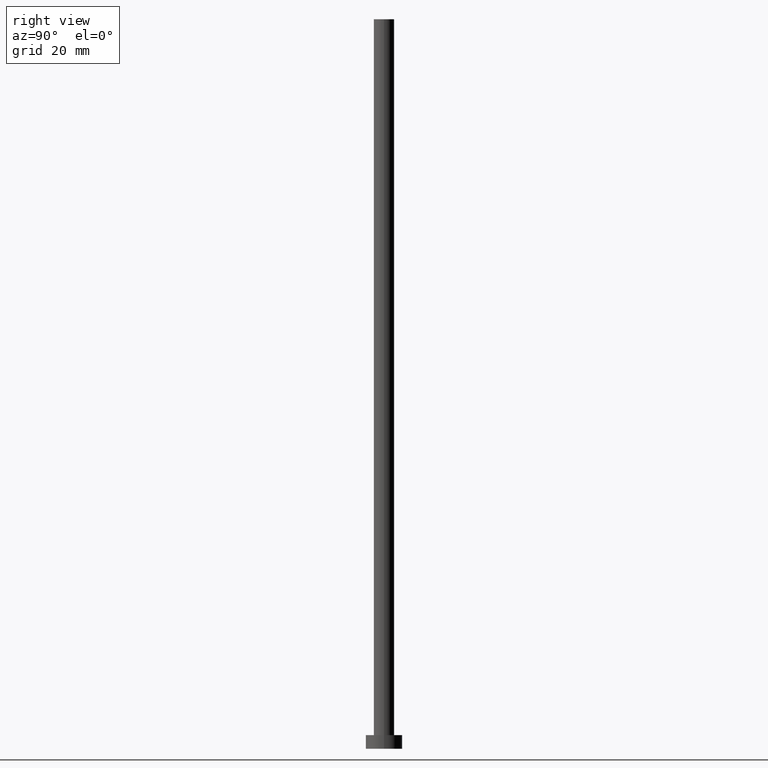
[diagram: clean part render]
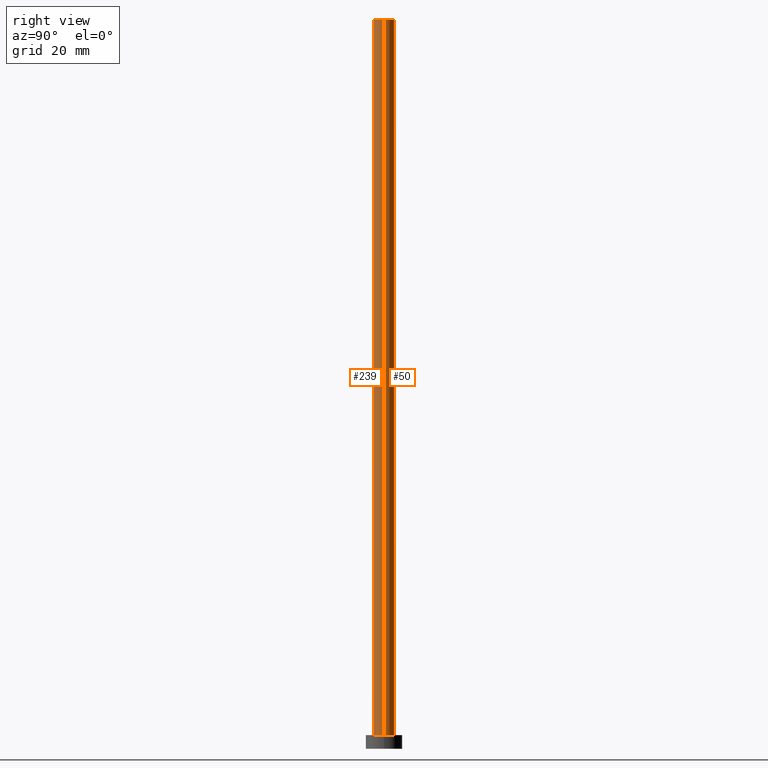
[diagram: same view with one multi-face feature highlighted, each face labeled with its STEP entity id]
A machine part, right view. The highlighted faces form ONE feature: a constant-radius fillet chain: 2 tangent blend faces with common blend radius 2.25 mm. The faces share edges in the B-rep.
Their STEP definitions:
[1] entity #239 (Cylinder):
#1 = VECTOR ( 'NONE', #252, 1000.000000000000000 ) ;
#3 = VERTEX_POINT ( 'NONE', #47 ) ;
#12 = AXIS2_PLACEMENT_3D ( 'NONE', #89, #160, #66 ) ;
#15 = LINE ( 'NONE', #146, #1 ) ;
#23 = CARTESIAN_POINT ( 'NONE',  ( 2.250000000000000000, 2.755455298081544285E-16, 160.0000000000000000 ) ) ;
#42 = DIRECTION ( 'NONE',  ( 0.000000000000000000, 0.000000000000000000, 1.000000000000000000 ) ) ;
#47 = CARTESIAN_POINT ( 'NONE',  ( -2.250000000000000000, 0.000000000000000000, 160.0000000000000000 ) ) ;
#48 = DIRECTION ( 'NONE',  ( -0.000000000000000000, -0.000000000000000000, -1.000000000000000000 ) ) ;
#52 = EDGE_CURVE ( 'NONE', #3, #100, #15, .T. ) ;
#60 = ORIENTED_EDGE ( 'NONE', *, *, #214, .F. ) ;
#66 = DIRECTION ( 'NONE',  ( 1.000000000000000000, 0.000000000000000000, 0.000000000000000000 ) ) ;
#78 = CARTESIAN_POINT ( 'NONE',  ( 0.000000000000000000, 0.000000000000000000, 160.0000000000000000 ) ) ;
#82 = VECTOR ( 'NONE', #110, 1000.000000000000000 ) ;
#86 = ORIENTED_EDGE ( 'NONE', *, *, #114, .T. ) ;
#89 = CARTESIAN_POINT ( 'NONE',  ( 0.000000000000000000, 0.000000000000000000, 3.000000000000000000 ) ) ;
#98 = ORIENTED_EDGE ( 'NONE', *, *, #52, .T. ) ;
#100 = VERTEX_POINT ( 'NONE', #168 ) ;
#103 = CARTESIAN_POINT ( 'NONE',  ( 2.250000000000000000, 2.755455298081544285E-16, 3.000000000000000000 ) ) ;
#110 = DIRECTION ( 'NONE',  ( -0.000000000000000000, -0.000000000000000000, -1.000000000000000000 ) ) ;
#114 = EDGE_CURVE ( 'NONE', #100, #243, #181, .T. ) ;
#130 = CIRCLE ( 'NONE', #234, 2.250000000000000000 ) ;
#132 = ORIENTED_EDGE ( 'NONE', *, *, #215, .F. ) ;
#133 = EDGE_LOOP ( 'NONE', ( #132, #60, #98, #86 ) ) ;
#135 = DIRECTION ( 'NONE',  ( -1.000000000000000000, 0.000000000000000000, 0.000000000000000000 ) ) ;
#137 = FACE_OUTER_BOUND ( 'NONE', #133, .T. ) ;
#146 = CARTESIAN_POINT ( 'NONE',  ( -2.250000000000000000, 0.000000000000000000, 160.0000000000000000 ) ) ;
#150 = AXIS2_PLACEMENT_3D ( 'NONE', #200, #48, #135 ) ;
#160 = DIRECTION ( 'NONE',  ( 0.000000000000000000, 0.000000000000000000, 1.000000000000000000 ) ) ;
#168 = CARTESIAN_POINT ( 'NONE',  ( -2.250000000000000000, 0.000000000000000000, 3.000000000000000000 ) ) ;
#181 = CIRCLE ( 'NONE', #12, 2.250000000000000000 ) ;
#198 = LINE ( 'NONE', #235, #82 ) ;
#200 = CARTESIAN_POINT ( 'NONE',  ( 0.000000000000000000, 0.000000000000000000, 160.0000000000000000 ) ) ;
#214 = EDGE_CURVE ( 'NONE', #3, #236, #130, .T. ) ;
#215 = EDGE_CURVE ( 'NONE', #236, #243, #198, .T. ) ;
#216 = DIRECTION ( 'NONE',  ( 1.000000000000000000, 0.000000000000000000, 0.000000000000000000 ) ) ;
#234 = AXIS2_PLACEMENT_3D ( 'NONE', #78, #42, #216 ) ;
#235 = CARTESIAN_POINT ( 'NONE',  ( 2.250000000000000000, 2.755455298081544285E-16, 160.0000000000000000 ) ) ;
#236 = VERTEX_POINT ( 'NONE', #23 ) ;
#239 = ADVANCED_FACE ( 'NONE', ( #137 ), #245, .T. ) ;
#243 = VERTEX_POINT ( 'NONE', #103 ) ;
#245 = CYLINDRICAL_SURFACE ( 'NONE', #150, 2.250000000000000000 ) ;
#252 = DIRECTION ( 'NONE',  ( -0.000000000000000000, -0.000000000000000000, -1.000000000000000000 ) ) ;
[2] entity #50 (Cylinder):
#1 = VECTOR ( 'NONE', #252, 1000.000000000000000 ) ;
#2 = CARTESIAN_POINT ( 'NONE',  ( 0.000000000000000000, 0.000000000000000000, 160.0000000000000000 ) ) ;
#3 = VERTEX_POINT ( 'NONE', #47 ) ;
#4 = EDGE_CURVE ( 'NONE', #236, #3, #185, .T. ) ;
#5 = AXIS2_PLACEMENT_3D ( 'NONE', #2, #237, #72 ) ;
#15 = LINE ( 'NONE', #146, #1 ) ;
#23 = CARTESIAN_POINT ( 'NONE',  ( 2.250000000000000000, 2.755455298081544285E-16, 160.0000000000000000 ) ) ;
#47 = CARTESIAN_POINT ( 'NONE',  ( -2.250000000000000000, 0.000000000000000000, 160.0000000000000000 ) ) ;
#50 = ADVANCED_FACE ( 'NONE', ( #102 ), #177, .T. ) ;
#52 = EDGE_CURVE ( 'NONE', #3, #100, #15, .T. ) ;
#53 = ORIENTED_EDGE ( 'NONE', *, *, #52, .F. ) ;
#61 = ORIENTED_EDGE ( 'NONE', *, *, #215, .T. ) ;
#65 = EDGE_CURVE ( 'NONE', #243, #100, #179, .T. ) ;
#72 = DIRECTION ( 'NONE',  ( -1.000000000000000000, 0.000000000000000000, 0.000000000000000000 ) ) ;
#74 = ORIENTED_EDGE ( 'NONE', *, *, #4, .F. ) ;
#82 = VECTOR ( 'NONE', #110, 1000.000000000000000 ) ;
#100 = VERTEX_POINT ( 'NONE', #168 ) ;
#102 = FACE_OUTER_BOUND ( 'NONE', #248, .T. ) ;
#103 = CARTESIAN_POINT ( 'NONE',  ( 2.250000000000000000, 2.755455298081544285E-16, 3.000000000000000000 ) ) ;
#110 = DIRECTION ( 'NONE',  ( -0.000000000000000000, -0.000000000000000000, -1.000000000000000000 ) ) ;
#122 = DIRECTION ( 'NONE',  ( 0.000000000000000000, 0.000000000000000000, 1.000000000000000000 ) ) ;
#129 = CARTESIAN_POINT ( 'NONE',  ( 0.000000000000000000, 0.000000000000000000, 160.0000000000000000 ) ) ;
#134 = DIRECTION ( 'NONE',  ( 1.000000000000000000, 0.000000000000000000, 0.000000000000000000 ) ) ;
#143 = AXIS2_PLACEMENT_3D ( 'NONE', #129, #205, #195 ) ;
#146 = CARTESIAN_POINT ( 'NONE',  ( -2.250000000000000000, 0.000000000000000000, 160.0000000000000000 ) ) ;
#168 = CARTESIAN_POINT ( 'NONE',  ( -2.250000000000000000, 0.000000000000000000, 3.000000000000000000 ) ) ;
#173 = AXIS2_PLACEMENT_3D ( 'NONE', #204, #122, #134 ) ;
#177 = CYLINDRICAL_SURFACE ( 'NONE', #5, 2.250000000000000000 ) ;
#179 = CIRCLE ( 'NONE', #173, 2.250000000000000000 ) ;
#185 = CIRCLE ( 'NONE', #143, 2.250000000000000000 ) ;
#195 = DIRECTION ( 'NONE',  ( 1.000000000000000000, 0.000000000000000000, 0.000000000000000000 ) ) ;
#198 = LINE ( 'NONE', #235, #82 ) ;
#204 = CARTESIAN_POINT ( 'NONE',  ( 0.000000000000000000, 0.000000000000000000, 3.000000000000000000 ) ) ;
#205 = DIRECTION ( 'NONE',  ( 0.000000000000000000, 0.000000000000000000, 1.000000000000000000 ) ) ;
#215 = EDGE_CURVE ( 'NONE', #236, #243, #198, .T. ) ;
#235 = CARTESIAN_POINT ( 'NONE',  ( 2.250000000000000000, 2.755455298081544285E-16, 160.0000000000000000 ) ) ;
#236 = VERTEX_POINT ( 'NONE', #23 ) ;
#237 = DIRECTION ( 'NONE',  ( -0.000000000000000000, -0.000000000000000000, -1.000000000000000000 ) ) ;
#240 = ORIENTED_EDGE ( 'NONE', *, *, #65, .T. ) ;
#243 = VERTEX_POINT ( 'NONE', #103 ) ;
#248 = EDGE_LOOP ( 'NONE', ( #74, #61, #240, #53 ) ) ;
#252 = DIRECTION ( 'NONE',  ( -0.000000000000000000, -0.000000000000000000, -1.000000000000000000 ) ) ;